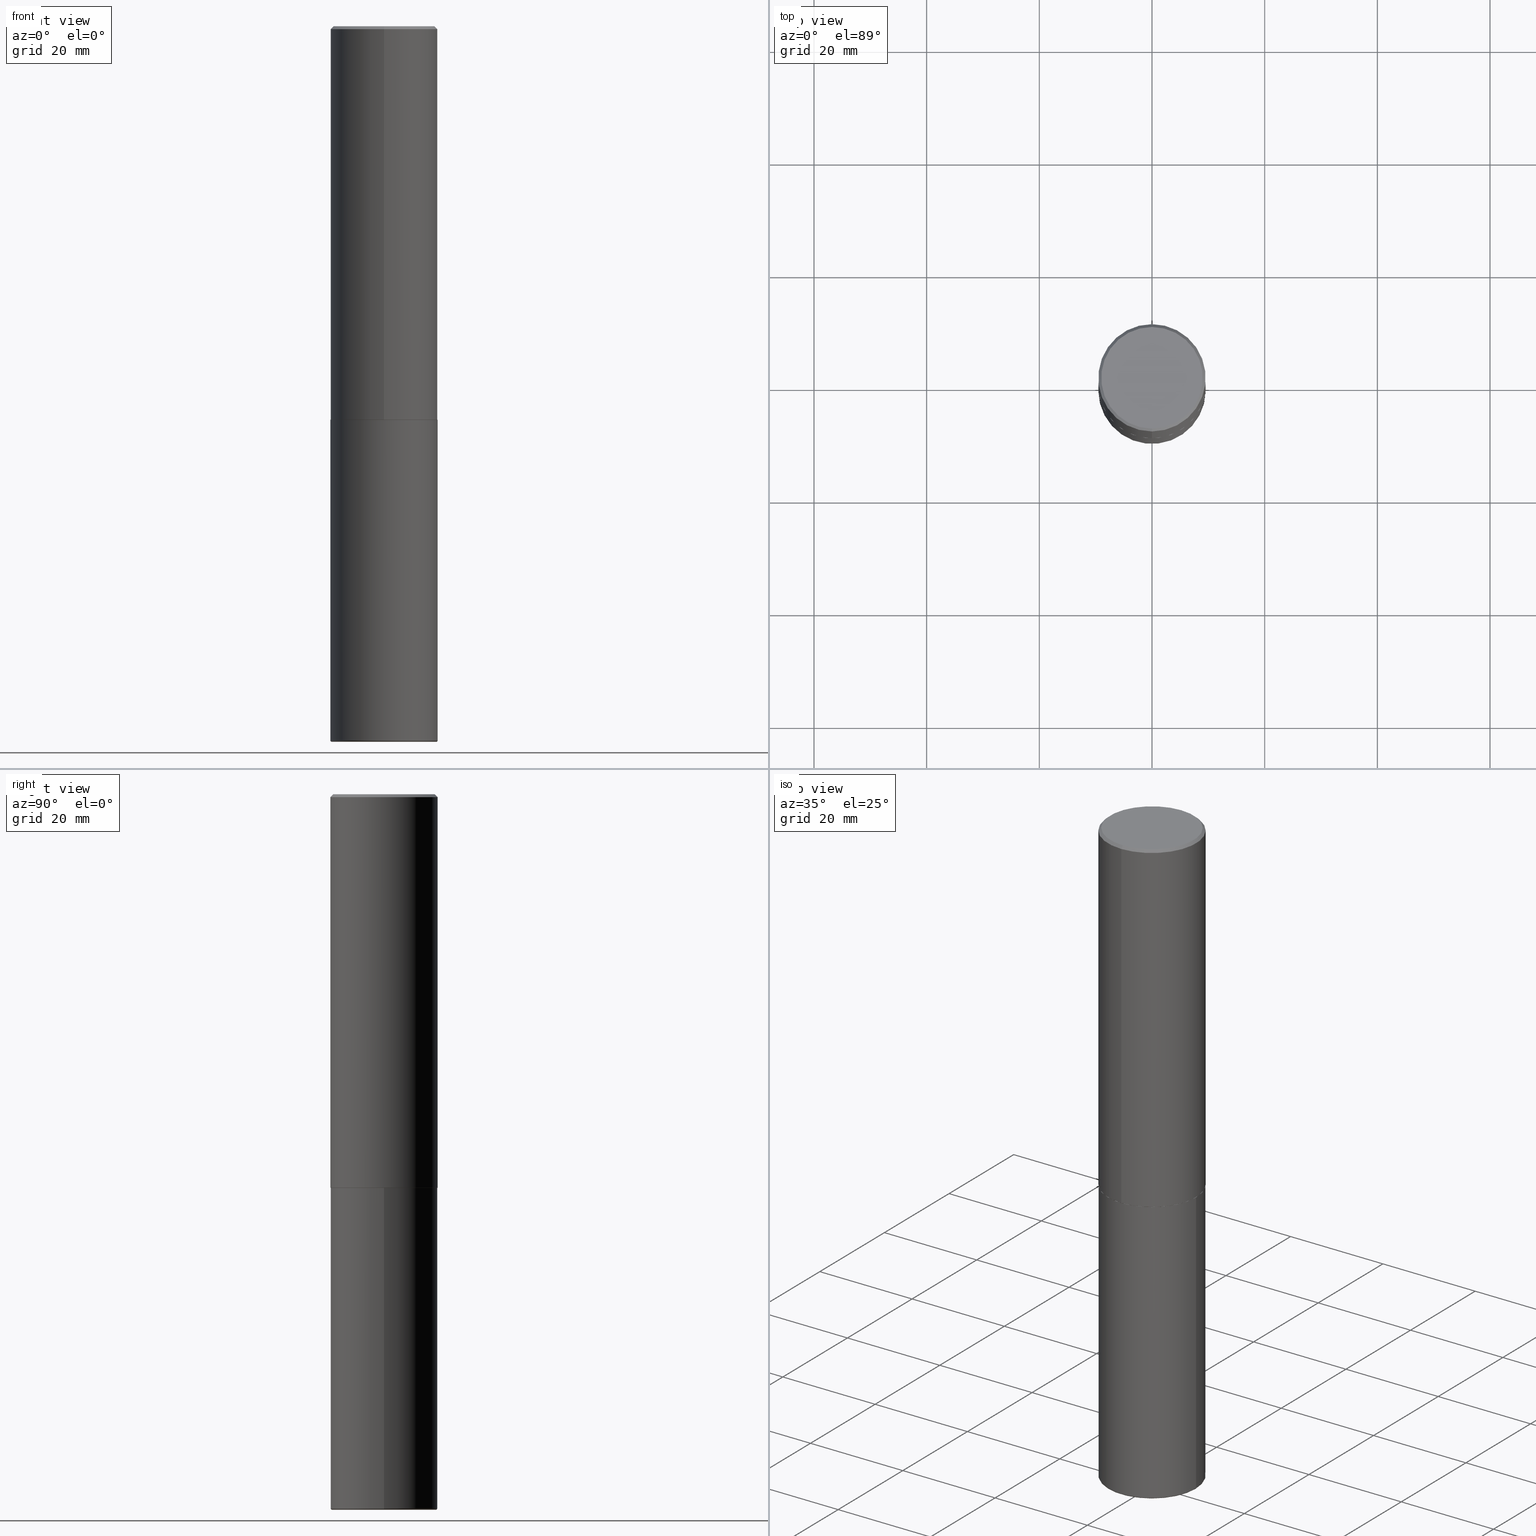
[diagram: canonical four-view strip — front | top / right | iso, engineering-drawing reading convention]
A machine part, canonical four-view strip (front | top / right | iso — engineering-drawing reading convention). The complete STEP part file that produces these views, byte-faithful:
ISO-10303-21;
HEADER;
FILE_DESCRIPTION (( 'STEP AP203' ),
    '1' );
FILE_NAME ('37637.STEP',
    '2024-03-02T06:30:19',
    ( '' ),
    ( '' ),
    'SwSTEP 2.0',
    'SolidWorks 2023',
    '' );
FILE_SCHEMA (( 'CONFIG_CONTROL_DESIGN' ));
ENDSEC;

DATA;
#1 = MECHANICAL_CONTEXT ( 'NONE', #52, 'mechanical' ) ;
#2 = CONICAL_SURFACE ( 'NONE', #416, 0.3750000000000000555, 0.7853981633974465026 ) ;
#3 = CONICAL_SURFACE ( 'NONE', #195, 0.3750000000000000555, 0.7853981633974465026 ) ;
#4 = APPROVAL ( #331, 'UNSPECIFIED' ) ;
#5 = ORIENTED_EDGE ( 'NONE', *, *, #392, .T. ) ;
#6 = UNCERTAINTY_MEASURE_WITH_UNIT (LENGTH_MEASURE( 1.000000000000000082E-05 ), #236, 'distance_accuracy_value', 'NONE');
#7 = ORIENTED_EDGE ( 'NONE', *, *, #225, .T. ) ;
#8 = LENGTH_MEASURE_WITH_UNIT ( LENGTH_MEASURE( 0.02539999999999999897 ), #66 );
#9 = CIRCLE ( 'NONE', #366, 0.3650000000000000466 ) ;
#10 = ORIENTED_EDGE ( 'NONE', *, *, #412, .F. ) ;
#11 = EDGE_LOOP ( 'NONE', ( #304, #19 ) ) ;
#12 = ORIENTED_EDGE ( 'NONE', *, *, #116, .T. ) ;
#13 = CC_DESIGN_SECURITY_CLASSIFICATION ( #130, ( #206 ) ) ;
#14 = AXIS2_PLACEMENT_3D ( 'NONE', #387, #48, #221 ) ;
#15 = AXIS2_PLACEMENT_3D ( 'NONE', #145, #24, #408 ) ;
#16 = VERTEX_POINT ( 'NONE', #306 ) ;
#17 = CARTESIAN_POINT ( 'NONE',  ( 2.657429831742841742E-15, 0.3739999999999903957, -2.750000000000000888 ) ) ;
#18 = CYLINDRICAL_SURFACE ( 'NONE', #189, 0.3750000000000000555 ) ;
#19 = ORIENTED_EDGE ( 'NONE', *, *, #295, .T. ) ;
#20 = DIRECTION ( 'NONE',  ( 1.000000000000000000, -6.982962677686271444E-15, 4.883557194083115143E-29 ) ) ;
#21 = DIRECTION ( 'NONE',  ( -2.446040391741596606E-29, 3.490662795793665557E-15, 1.000000000000000000 ) ) ;
#22 = CARTESIAN_POINT ( 'NONE',  ( -2.611628041454596160E-15, -0.3740000000000096581, -2.749999999999998668 ) ) ;
#23 = DIRECTION ( 'NONE',  ( 1.000000000000000000, -6.982962677686270655E-15, 0.000000000000000000 ) ) ;
#24 = DIRECTION ( 'NONE',  ( -2.446040391741596606E-29, 3.490662795793665557E-15, 1.000000000000000000 ) ) ;
#25 = CARTESIAN_POINT ( 'NONE',  ( 2.660982545421643429E-15, 0.3739999999999903957, -2.750000000000000888 ) ) ;
#26 = DIRECTION ( 'NONE',  ( 1.000000000000000000, 0.000000000000000000, 0.000000000000000000 ) ) ;
#27 = DIRECTION ( 'NONE',  ( -2.445468806185136597E-29, 3.491481338843145583E-15, 1.000000000000000000 ) ) ;
#28 = AXIS2_PLACEMENT_3D ( 'NONE', #90, #156, #292 ) ;
#29 = DIRECTION ( 'NONE',  ( -4.851104656540954809E-15, -0.7071067811865486830, -0.7071067811865463515 ) ) ;
#30 = APPROVAL_ROLE ( '' ) ;
#31 = CIRCLE ( 'NONE', #253, 0.3549999999999999822 ) ;
#32 = FACE_OUTER_BOUND ( 'NONE', #339, .T. ) ;
#33 = ORIENTED_EDGE ( 'NONE', *, *, #384, .T. ) ;
#34 = CARTESIAN_POINT ( 'NONE',  ( 1.220288934286383144E-28, -1.742249188082729666E-14, -4.990000000000000213 ) ) ;
#35 = ADVANCED_FACE ( 'NONE', ( #377 ), #386, .T. ) ;
#36 = CIRCLE ( 'NONE', #397, 0.3750000000000000555 ) ;
#37 = PRODUCT_DEFINITION ( 'UNKNOWN', '', #206, #332 ) ;
#38 = VERTEX_POINT ( 'NONE', #112 ) ;
#39 = ORIENTED_EDGE ( 'NONE', *, *, #170, .F. ) ;
#40 = ORIENTED_EDGE ( 'NONE', *, *, #186, .F. ) ;
#41 = CARTESIAN_POINT ( 'NONE',  ( 4.892080783483214581E-31, -6.981325591587361238E-17, -0.02000000000000008715 ) ) ;
#42 = VERTEX_POINT ( 'NONE', #73 ) ;
#43 = AXIS2_PLACEMENT_3D ( 'NONE', #371, #129, #249 ) ;
#44 = ORIENTED_EDGE ( 'NONE', *, *, #372, .F. ) ;
#45 = CARTESIAN_POINT ( 'NONE',  ( 1.220288934286383144E-28, -1.742249188082729666E-14, -4.990000000000000213 ) ) ;
#46 = LINE ( 'NONE', #313, #352 ) ;
#47 = CARTESIAN_POINT ( 'NONE',  ( -0.3750000000000000555, 2.664535259100376091E-15, -1.844600658845589598E-29 ) ) ;
#48 = DIRECTION ( 'NONE',  ( -2.445468806185136597E-29, 3.491481338843145583E-15, 1.000000000000000000 ) ) ;
#49 = DATE_TIME_ROLE ( 'creation_date' ) ;
#50 = PLANE ( 'NONE',  #418 ) ;
#51 = CYLINDRICAL_SURFACE ( 'NONE', #100, 0.3750000000000000555 ) ;
#52 = APPLICATION_CONTEXT ( 'configuration controlled 3d designs of mechanical parts and assemblies' ) ;
#53 = LINE ( 'NONE', #247, #402 ) ;
#54 = FACE_OUTER_BOUND ( 'NONE', #401, .T. ) ;
#55 = CARTESIAN_POINT ( 'NONE',  ( 0.000000000000000000, 0.000000000000000000, 0.000000000000000000 ) ) ;
#56 = EDGE_CURVE ( 'NONE', #337, #300, #308, .T. ) ;
#57 = APPLICATION_CONTEXT ( 'configuration controlled 3d designs of mechanical parts and assemblies' ) ;
#58 = VECTOR ( 'NONE', #169, 39.37007874015748143 ) ;
#59 = PERSON_AND_ORGANIZATION ( #120, #379 ) ;
#60 = EDGE_LOOP ( 'NONE', ( #363, #192 ) ) ;
#61 = EDGE_CURVE ( 'NONE', #174, #205, #46, .T. ) ;
#62 = ORIENTED_EDGE ( 'NONE', *, *, #395, .T. ) ;
#63 = PERSON_AND_ORGANIZATION_ROLE ( 'design_owner' ) ;
#64 = ORIENTED_EDGE ( 'NONE', *, *, #374, .F. ) ;
#65 = AXIS2_PLACEMENT_3D ( 'NONE', #343, #282, #411 ) ;
#66 =( LENGTH_UNIT ( ) NAMED_UNIT ( * ) SI_UNIT ( $, .METRE. ) );
#67 = CYLINDRICAL_SURFACE ( 'NONE', #80, 0.3750000000000002220 ) ;
#68 = CARTESIAN_POINT ( 'NONE',  ( 4.892080783483214581E-31, -6.981325591587361238E-17, -0.02000000000000008715 ) ) ;
#69 = AXIS2_PLACEMENT_3D ( 'NONE', #55, #115, #348 ) ;
#70 = ORIENTED_EDGE ( 'NONE', *, *, #258, .F. ) ;
#71 = CC_DESIGN_DATE_AND_TIME_ASSIGNMENT ( #341, #49, ( #37 ) ) ;
#72 = DIRECTION ( 'NONE',  ( 2.438088387897960049E-29, -3.491481338843145188E-15, -1.000000000000000000 ) ) ;
#73 = CARTESIAN_POINT ( 'NONE',  ( -2.611628041454596160E-15, -0.3740000000000096581, -2.749999999999998668 ) ) ;
#74 = APPROVAL_STATUS ( 'not_yet_approved' ) ;
#75 = FACE_OUTER_BOUND ( 'NONE', #60, .T. ) ;
#76 = ORIENTED_EDGE ( 'NONE', *, *, #116, .F. ) ;
#77 = CARTESIAN_POINT ( 'NONE',  ( 6.724165036897648492E-29, -9.595832025636787455E-15, -2.749000000000000110 ) ) ;
#78 = APPROVAL_PERSON_ORGANIZATION ( #181, #388, #144 ) ;
#79 = ADVANCED_FACE ( 'NONE', ( #367 ), #2, .T. ) ;
#80 = AXIS2_PLACEMENT_3D ( 'NONE', #390, #375, #140 ) ;
#81 = CARTESIAN_POINT ( 'NONE',  ( 2.478951750578624209E-15, 0.3549999999999999822, -1.215853765202481601E-15 ) ) ;
#82 = CALENDAR_DATE ( 2024, 2, 3 ) ;
#83 = DIRECTION ( 'NONE',  ( -2.446040391741596606E-29, 3.490662795793665557E-15, 1.000000000000000000 ) ) ;
#84 = DIRECTION ( 'NONE',  ( -2.446040391741596606E-29, 3.490662795793665557E-15, 1.000000000000000000 ) ) ;
#85 = DATE_AND_TIME ( #278, #323 ) ;
#86 = EDGE_CURVE ( 'NONE', #198, #337, #359, .T. ) ;
#87 = CARTESIAN_POINT ( 'NONE',  ( 1.220288934286383144E-28, -1.742249188082729666E-14, -4.990000000000000213 ) ) ;
#88 = CARTESIAN_POINT ( 'NONE',  ( 6.726611077289389265E-29, -9.599322688432580971E-15, -2.750000000000000000 ) ) ;
#89 = FACE_OUTER_BOUND ( 'NONE', #263, .T. ) ;
#90 = CARTESIAN_POINT ( 'NONE',  ( 6.726611077289389265E-29, -9.599322688432580971E-15, -2.750000000000000000 ) ) ;
#91 = EDGE_CURVE ( 'NONE', #38, #370, #53, .T. ) ;
#92 = SECURITY_CLASSIFICATION_LEVEL ( 'unclassified' ) ;
#93 = AXIS2_PLACEMENT_3D ( 'NONE', #293, #290, #325 ) ;
#94 = AXIS2_PLACEMENT_3D ( 'NONE', #45, #336, #20 ) ;
#95 = DIRECTION ( 'NONE',  ( -2.445468806185136597E-29, 3.491481338843145583E-15, 1.000000000000000000 ) ) ;
#96 = ORIENTED_EDGE ( 'NONE', *, *, #295, .F. ) ;
#97 = PERSON_AND_ORGANIZATION ( #120, #379 ) ;
#98 = DIRECTION ( 'NONE',  ( -6.982962677686266711E-15, -1.000000000000000000, 2.921762560068730595E-15 ) ) ;
#99 = ORIENTED_EDGE ( 'NONE', *, *, #103, .T. ) ;
#100 = AXIS2_PLACEMENT_3D ( 'NONE', #121, #154, #180 ) ;
#101 = LOCAL_TIME ( 1, 30, 19.00000000000000000, #217 ) ;
#102 = EDGE_LOOP ( 'NONE', ( #131, #167, #39, #335 ) ) ;
#103 = EDGE_CURVE ( 'NONE', #16, #205, #256, .T. ) ;
#104 = DIRECTION ( 'NONE',  ( 2.446040391741596606E-29, -3.490662795793665557E-15, -1.000000000000000000 ) ) ;
#105 = AXIS2_PLACEMENT_3D ( 'NONE', #328, #319, #98 ) ;
#106 = ORIENTED_EDGE ( 'NONE', *, *, #86, .F. ) ;
#107 = LINE ( 'NONE', #47, #353 ) ;
#108 = EDGE_LOOP ( 'NONE', ( #96, #99, #33, #76 ) ) ;
#109 = CALENDAR_DATE ( 2024, 2, 3 ) ;
#110 = DIRECTION ( 'NONE',  ( -6.982962677686265922E-15, -1.000000000000000000, 3.490662795793665557E-15 ) ) ;
#111 = CC_DESIGN_PERSON_AND_ORGANIZATION_ASSIGNMENT ( #97, #63, ( #347 ) ) ;
#112 = CARTESIAN_POINT ( 'NONE',  ( 2.664535259100411196E-15, 0.3749999999999907296, -2.749000000000000998 ) ) ;
#113 = AXIS2_PLACEMENT_3D ( 'NONE', #209, #137, #344 ) ;
#114 = AXIS2_PLACEMENT_3D ( 'NONE', #406, #83, #204 ) ;
#115 = DIRECTION ( 'NONE',  ( -2.446040391741596606E-29, 3.490662795793665557E-15, 1.000000000000000000 ) ) ;
#116 = EDGE_CURVE ( 'NONE', #267, #370, #351, .T. ) ;
#117 = FACE_OUTER_BOUND ( 'NONE', #281, .T. ) ;
#118 = DATE_AND_TIME ( #82, #101 ) ;
#119 = CARTESIAN_POINT ( 'NONE',  ( 6.726611077289389265E-29, -9.599322688432580971E-15, -2.750000000000000000 ) ) ;
#120 = PERSON ( 'UNSPECIFIED', 'UNSPECIFIED', 'UNSPECIFIED', ('UNSPECIFIED'), ('UNSPECIFIED'), ('UNSPECIFIED') ) ;
#121 = CARTESIAN_POINT ( 'NONE',  ( 0.000000000000000000, 0.000000000000000000, 0.000000000000000000 ) ) ;
#122 = APPROVAL_DATE_TIME ( #118, #365 ) ;
#123 = DIRECTION ( 'NONE',  ( -6.982962677686265922E-15, -1.000000000000000000, 2.913971193241877611E-15 ) ) ;
#124 = CIRCLE ( 'NONE', #271, 0.3750000000000000555 ) ;
#125 = DIRECTION ( 'NONE',  ( 6.982962677686265922E-15, 1.000000000000000000, -3.490662795793665557E-15 ) ) ;
#126 = DIRECTION ( 'NONE',  ( 1.000000000000000000, -6.982962677686265922E-15, 4.876176775795935793E-29 ) ) ;
#127 = CARTESIAN_POINT ( 'NONE',  ( 2.548781377355487113E-15, 0.3549999999999999822, -1.192522237898212341E-15 ) ) ;
#128 = CC_DESIGN_DATE_AND_TIME_ASSIGNMENT ( #224, #132, ( #130 ) ) ;
#129 = DIRECTION ( 'NONE',  ( -2.446040391741596606E-29, 3.490662795793665557E-15, 1.000000000000000000 ) ) ;
#130 = SECURITY_CLASSIFICATION ( '', '', #92 ) ;
#131 = ORIENTED_EDGE ( 'NONE', *, *, #258, .T. ) ;
#132 = DATE_TIME_ROLE ( 'classification_date' ) ;
#133 = MANIFOLD_SOLID_BREP ( 'Body-Move/Copy2[2]', #183 ) ;
#134 = CC_DESIGN_APPROVAL ( #388, ( #206 ) ) ;
#135 = ORIENTED_EDGE ( 'NONE', *, *, #381, .T. ) ;
#136 = ADVANCED_FACE ( 'NONE', ( #89 ), #51, .T. ) ;
#137 = DIRECTION ( 'NONE',  ( 7.105427357601001859E-15, 1.000000000000000000, -3.491481338843145583E-15 ) ) ;
#138 = DIRECTION ( 'NONE',  ( 1.000000000000000000, -6.982962677686271444E-15, 4.883557194083115143E-29 ) ) ;
#139 = AXIS2_PLACEMENT_3D ( 'NONE', #77, #350, #151 ) ;
#140 = DIRECTION ( 'NONE',  ( -6.982962677686266711E-15, -1.000000000000000000, 3.490662795793665951E-15 ) ) ;
#141 = VERTEX_POINT ( 'NONE', #187 ) ;
#142 = FACE_OUTER_BOUND ( 'NONE', #241, .T. ) ;
#143 = PRODUCT_DEFINITION_SHAPE ( 'NONE', 'NONE',  #37 ) ;
#144 = APPROVAL_ROLE ( '' ) ;
#145 = CARTESIAN_POINT ( 'NONE',  ( -1.141397163745304909E-45, 1.628849886601155835E-31, 4.666305460853910467E-17 ) ) ;
#146 = ORIENTED_EDGE ( 'NONE', *, *, #251, .F. ) ;
#147 = CARTESIAN_POINT ( 'NONE',  ( -1.141397163745304909E-45, 1.628849886601155835E-31, 4.666305460853910467E-17 ) ) ;
#148 = LOCAL_TIME ( 1, 30, 19.00000000000000000, #321 ) ;
#149 = CARTESIAN_POINT ( 'NONE',  ( -2.572686749164323547E-15, -0.3750000000000001110, -0.01999999999999877570 ) ) ;
#150 = COORDINATED_UNIVERSAL_TIME_OFFSET ( 5, 0, .BEHIND. ) ;
#151 = DIRECTION ( 'NONE',  ( -6.982962677686265922E-15, -1.000000000000000000, 2.913971193241877611E-15 ) ) ;
#152 = EDGE_CURVE ( 'NONE', #370, #205, #283, .T. ) ;
#153 = CYLINDRICAL_SURFACE ( 'NONE', #69, 0.3750000000000002220 ) ;
#154 = DIRECTION ( 'NONE',  ( -2.445468806185136597E-29, 3.491481338843145583E-15, 1.000000000000000000 ) ) ;
#155 = APPROVAL_PERSON_ORGANIZATION ( #330, #365, #318 ) ;
#156 = DIRECTION ( 'NONE',  ( -2.446040391741596606E-29, 3.490662795793665557E-15, 1.000000000000000000 ) ) ;
#157 = CALENDAR_DATE ( 2024, 2, 3 ) ;
#158 = ORIENTED_EDGE ( 'NONE', *, *, #412, .T. ) ;
#159 = APPLICATION_PROTOCOL_DEFINITION ( 'international standard', 'config_control_design', 1994, #52 ) ;
#160 = DIRECTION ( 'NONE',  ( 1.000000000000000000, -6.982962677686261189E-15, 0.000000000000000000 ) ) ;
#161 = ADVANCED_FACE ( 'NONE', ( #117 ), #382, .T. ) ;
#162 = VECTOR ( 'NONE', #316, 39.37007874015748143 ) ;
#163 = CC_DESIGN_PERSON_AND_ORGANIZATION_ASSIGNMENT ( #191, #329, ( #130 ) ) ;
#164 = ORIENTED_EDGE ( 'NONE', *, *, #103, .F. ) ;
#165 = APPROVAL_PERSON_ORGANIZATION ( #261, #4, #30 ) ;
#166 = CIRCLE ( 'NONE', #15, 0.3549999999999999822 ) ;
#167 = ORIENTED_EDGE ( 'NONE', *, *, #372, .T. ) ;
#168 = EDGE_LOOP ( 'NONE', ( #360, #274, #70, #409 ) ) ;
#169 = DIRECTION ( 'NONE',  ( -4.937700262165896205E-15, -0.7071067811867381980, 0.7071067811863568364 ) ) ;
#170 = EDGE_CURVE ( 'NONE', #201, #171, #396, .T. ) ;
#171 = VERTEX_POINT ( 'NONE', #248 ) ;
#172 = DIRECTION ( 'NONE',  ( -2.446040391741596606E-29, 3.490662795793665557E-15, 1.000000000000000000 ) ) ;
#173 = AXIS2_PLACEMENT_3D ( 'NONE', #34, #294, #160 ) ;
#174 = VERTEX_POINT ( 'NONE', #385 ) ;
#175 = APPROVAL_STATUS ( 'not_yet_approved' ) ;
#176 = CARTESIAN_POINT ( 'NONE',  ( 2.618611004132350411E-15, 0.3749999999999999445, -0.02000000000000139513 ) ) ;
#177 = ORIENTED_EDGE ( 'NONE', *, *, #303, .T. ) ;
#178 = PERSON_AND_ORGANIZATION_ROLE ( 'creator' ) ;
#179 = CARTESIAN_POINT ( 'NONE',  ( -0.3750000000000003886, -1.475795662172691781E-14, -4.990000000000000213 ) ) ;
#180 = DIRECTION ( 'NONE',  ( 1.000000000000000000, -6.982962677686265922E-15, 4.876176775795935793E-29 ) ) ;
#181 = PERSON_AND_ORGANIZATION ( #120, #379 ) ;
#182 = ADVANCED_FACE ( 'NONE', ( #415 ), #317, .F. ) ;
#183 = CLOSED_SHELL ( 'NONE', ( #233, #199, #79, #320, #208, #417, #280, #182 ) ) ;
#184 = AXIS2_PLACEMENT_3D ( 'NONE', #119, #380, #346 ) ;
#185 = DIRECTION ( 'NONE',  ( -2.446040391741596606E-29, 3.490662795793665557E-15, 1.000000000000000000 ) ) ;
#186 = EDGE_CURVE ( 'NONE', #300, #141, #124, .T. ) ;
#187 = CARTESIAN_POINT ( 'NONE',  ( 0.3750000000000003886, -2.004110288495964667E-14, -4.990000000000000213 ) ) ;
#188 = DIRECTION ( 'NONE',  ( -2.445468806185136597E-29, 3.491481338843145583E-15, 1.000000000000000000 ) ) ;
#189 = AXIS2_PLACEMENT_3D ( 'NONE', #260, #95, #126 ) ;
#190 =( NAMED_UNIT ( * ) SI_UNIT ( $, .STERADIAN. ) SOLID_ANGLE_UNIT ( ) );
#191 = PERSON_AND_ORGANIZATION ( #120, #379 ) ;
#192 = ORIENTED_EDGE ( 'NONE', *, *, #276, .T. ) ;
#193 = APPLICATION_PROTOCOL_DEFINITION ( 'international standard', 'config_control_design', 1994, #57 ) ;
#194 = AXIS2_PLACEMENT_3D ( 'NONE', #214, #413, #315 ) ;
#195 = AXIS2_PLACEMENT_3D ( 'NONE', #41, #279, #404 ) ;
#196 = VERTEX_POINT ( 'NONE', #25 ) ;
#197 = DIRECTION ( 'NONE',  ( -2.446040391741596045E-29, 3.490662795793665557E-15, 1.000000000000000000 ) ) ;
#198 = VERTEX_POINT ( 'NONE', #322 ) ;
#199 = ADVANCED_FACE ( 'NONE', ( #358 ), #153, .T. ) ;
#200 = ORIENTED_EDGE ( 'NONE', *, *, #381, .F. ) ;
#201 = VERTEX_POINT ( 'NONE', #250 ) ;
#202 = CARTESIAN_POINT ( 'NONE',  ( 0.3750000000000000555, -2.618611004132350016E-15, 1.828566290923476203E-29 ) ) ;
#203 = ORIENTED_EDGE ( 'NONE', *, *, #384, .F. ) ;
#204 = DIRECTION ( 'NONE',  ( -6.982962677686265922E-15, -1.000000000000000000, 3.494488891895536035E-15 ) ) ;
#205 = VERTEX_POINT ( 'NONE', #149 ) ;
#206 = PRODUCT_DEFINITION_FORMATION_WITH_SPECIFIED_SOURCE ( 'ANY', '', #347, .NOT_KNOWN. ) ;
#207 = AXIS2_PLACEMENT_3D ( 'NONE', #88, #197, #213 ) ;
#208 = ADVANCED_FACE ( 'NONE', ( #285 ), #67, .T. ) ;
#209 = CARTESIAN_POINT ( 'NONE',  ( -0.3650000000000000466, -1.482901089530292947E-14, -4.990000000000000213 ) ) ;
#210 = DIRECTION ( 'NONE',  ( -1.000000000000000000, 6.982962677686265922E-15, -4.876176775795935793E-29 ) ) ;
#211 = DIRECTION ( 'NONE',  ( 2.446040391741596045E-29, -3.490662795793665557E-15, -1.000000000000000000 ) ) ;
#212 = ADVANCED_FACE ( 'NONE', ( #273 ), #18, .T. ) ;
#213 = DIRECTION ( 'NONE',  ( -6.982962677686265922E-15, -1.000000000000000000, 3.490662795793665557E-15 ) ) ;
#214 = CARTESIAN_POINT ( 'NONE',  ( 4.892080783483214581E-31, -6.981325591587361238E-17, -0.02000000000000008715 ) ) ;
#215 = VECTOR ( 'NONE', #389, 39.37007874015748143 ) ;
#216 = CIRCLE ( 'NONE', #28, 0.3739999999999999991 ) ;
#217 = COORDINATED_UNIVERSAL_TIME_OFFSET ( 5, 0, .BEHIND. ) ;
#218 = DIMENSIONAL_EXPONENTS ( 1.000000000000000000, 0.000000000000000000, 0.000000000000000000, 0.000000000000000000, 0.000000000000000000, 0.000000000000000000, 0.000000000000000000 ) ;
#219 = DIRECTION ( 'NONE',  ( -2.445468806185136597E-29, 3.491481338843145583E-15, 1.000000000000000000 ) ) ;
#220 = CALENDAR_DATE ( 2024, 2, 3 ) ;
#221 = DIRECTION ( 'NONE',  ( 1.000000000000000000, -6.982962677686266711E-15, 0.000000000000000000 ) ) ;
#222 = DIRECTION ( 'NONE',  ( 1.000000000000000000, -6.982962677686270655E-15, 0.000000000000000000 ) ) ;
#223 = TOROIDAL_SURFACE ( 'NONE', #94, 0.3650000000000000466, 0.01000000000000061083 ) ;
#224 = DATE_AND_TIME ( #157, #291 ) ;
#225 = EDGE_CURVE ( 'NONE', #337, #198, #9, .T. ) ;
#226 = CARTESIAN_POINT ( 'NONE',  ( 6.725039217009124520E-29, -9.601573681818649859E-15, -2.750000000000000000 ) ) ;
#227 = ORIENTED_EDGE ( 'NONE', *, *, #152, .F. ) ;
#228 = CIRCLE ( 'NONE', #139, 0.3750000000000003886 ) ;
#229 = ORIENTED_EDGE ( 'NONE', *, *, #303, .F. ) ;
#230 = CC_DESIGN_PERSON_AND_ORGANIZATION_ASSIGNMENT ( #345, #178, ( #206 ) ) ;
#231 = DIRECTION ( 'NONE',  ( -2.445468806185136597E-29, 3.491481338843145583E-15, 1.000000000000000000 ) ) ;
#232 = ORIENTED_EDGE ( 'NONE', *, *, #276, .F. ) ;
#233 = ADVANCED_FACE ( 'NONE', ( #32 ), #369, .T. ) ;
#234 = VECTOR ( 'NONE', #338, 39.37007874015748143 ) ;
#235 = ORIENTED_EDGE ( 'NONE', *, *, #61, .F. ) ;
#236 =( CONVERSION_BASED_UNIT ( 'INCH', #8 ) LENGTH_UNIT ( ) NAMED_UNIT ( #218 ) );
#237 = EDGE_CURVE ( 'NONE', #196, #42, #216, .T. ) ;
#238 = LINE ( 'NONE', #17, #162 ) ;
#239 = ORIENTED_EDGE ( 'NONE', *, *, #357, .F. ) ;
#240 = FACE_OUTER_BOUND ( 'NONE', #301, .T. ) ;
#241 = EDGE_LOOP ( 'NONE', ( #376, #7, #5, #40 ) ) ;
#242 = CARTESIAN_POINT ( 'NONE',  ( -0.3650000000000000466, -1.481094116520914498E-14, -5.000000000000000888 ) ) ;
#243 = CLOSED_SHELL ( 'NONE', ( #212, #35, #311, #136, #399, #161 ) ) ;
#244 = CIRCLE ( 'NONE', #173, 0.3750000000000000555 ) ;
#245 = PRODUCT_RELATED_PRODUCT_CATEGORY ( 'detail', '', ( #347 ) ) ;
#246 = APPROVAL_DATE_TIME ( #356, #4 ) ;
#247 = CARTESIAN_POINT ( 'NONE',  ( 2.664535259100376880E-15, 0.3750000000000002220, -1.308998548422625521E-15 ) ) ;
#248 = CARTESIAN_POINT ( 'NONE',  ( -0.3750000000000000555, -1.084749752222259835E-14, -2.750000000000000000 ) ) ;
#249 = DIRECTION ( 'NONE',  ( -6.982962677686266711E-15, -1.000000000000000000, 2.921762560068730595E-15 ) ) ;
#250 = CARTESIAN_POINT ( 'NONE',  ( 0.3750000000000000555, -1.222018468595100145E-14, -2.750000000000000000 ) ) ;
#251 = EDGE_CURVE ( 'NONE', #174, #38, #264, .T. ) ;
#252 = PLANE ( 'NONE',  #207 ) ;
#253 = AXIS2_PLACEMENT_3D ( 'NONE', #147, #172, #110 ) ;
#254 = CARTESIAN_POINT ( 'NONE',  ( 2.618611004132350411E-15, 0.3749999999999999445, -0.02000000000000139513 ) ) ;
#255 = COORDINATED_UNIVERSAL_TIME_OFFSET ( 5, 0, .BEHIND. ) ;
#256 = LINE ( 'NONE', #383, #410 ) ;
#257 = AXIS2_PLACEMENT_3D ( 'NONE', #277, #231, #138 ) ;
#258 = EDGE_CURVE ( 'NONE', #141, #300, #244, .T. ) ;
#259 = EDGE_LOOP ( 'NONE', ( #333, #327, #203, #235 ) ) ;
#260 = CARTESIAN_POINT ( 'NONE',  ( 0.000000000000000000, 0.000000000000000000, 0.000000000000000000 ) ) ;
#261 = PERSON_AND_ORGANIZATION ( #120, #379 ) ;
#262 =( NAMED_UNIT ( * ) PLANE_ANGLE_UNIT ( ) SI_UNIT ( $, .RADIAN. ) );
#263 = EDGE_LOOP ( 'NONE', ( #44, #398, #62, #232 ) ) ;
#264 = CIRCLE ( 'NONE', #298, 0.3750000000000003886 ) ;
#265 = AXIS2_PLACEMENT_3D ( 'NONE', #403, #287, #23 ) ;
#266 = CIRCLE ( 'NONE', #184, 0.3739999999999999991 ) ;
#267 = VERTEX_POINT ( 'NONE', #127 ) ;
#268 = ORIENTED_EDGE ( 'NONE', *, *, #374, .T. ) ;
#269 = MANIFOLD_SOLID_BREP ( 'Body-Move/Copy2[1]', #243 ) ;
#270 = DIRECTION ( 'NONE',  ( 6.982962677686265922E-15, 1.000000000000000000, -3.494488891895536035E-15 ) ) ;
#271 = AXIS2_PLACEMENT_3D ( 'NONE', #87, #219, #355 ) ;
#272 = CARTESIAN_POINT ( 'NONE',  ( 6.725039217009124520E-29, -9.601573681818649859E-15, -2.750000000000000000 ) ) ;
#273 = FACE_OUTER_BOUND ( 'NONE', #102, .T. ) ;
#274 = ORIENTED_EDGE ( 'NONE', *, *, #56, .T. ) ;
#275 = LINE ( 'NONE', #22, #58 ) ;
#276 = EDGE_CURVE ( 'NONE', #171, #201, #36, .T. ) ;
#277 = CARTESIAN_POINT ( 'NONE',  ( 1.220288934286383144E-28, -1.742249188082729666E-14, -4.990000000000000213 ) ) ;
#278 = CALENDAR_DATE ( 2024, 2, 3 ) ;
#279 = DIRECTION ( 'NONE',  ( 2.446040391741596606E-29, -3.490662795793665557E-15, -1.000000000000000000 ) ) ;
#280 = ADVANCED_FACE ( 'NONE', ( #54 ), #252, .F. ) ;
#281 = EDGE_LOOP ( 'NONE', ( #106, #373 ) ) ;
#282 = DIRECTION ( 'NONE',  ( -6.982962677686266711E-15, -1.000000000000000000, 3.491481338843145583E-15 ) ) ;
#283 = CIRCLE ( 'NONE', #194, 0.3750000000000000555 ) ;
#284 = CIRCLE ( 'NONE', #114, 0.3750000000000000555 ) ;
#285 = FACE_OUTER_BOUND ( 'NONE', #393, .T. ) ;
#286 = FACE_OUTER_BOUND ( 'NONE', #394, .T. ) ;
#287 = DIRECTION ( 'NONE',  ( -2.445468806185136597E-29, 3.491481338843145583E-15, 1.000000000000000000 ) ) ;
#288 = CARTESIAN_POINT ( 'NONE',  ( 0.000000000000000000, 0.000000000000000000, 0.000000000000000000 ) ) ;
#289 = CARTESIAN_POINT ( 'NONE',  ( 6.724165036897648492E-29, -9.595832025636787455E-15, -2.749000000000000110 ) ) ;
#290 = DIRECTION ( 'NONE',  ( 2.438088387897960049E-29, -3.491481338843145188E-15, -1.000000000000000000 ) ) ;
#291 = LOCAL_TIME ( 1, 30, 19.00000000000000000, #299 ) ;
#292 = DIRECTION ( 'NONE',  ( -6.982962677686266711E-15, -1.000000000000000000, 2.921762560068730595E-15 ) ) ;
#293 = CARTESIAN_POINT ( 'NONE',  ( 1.774526178394363037E-29, -3.242643679648566706E-14, -5.000000000000000000 ) ) ;
#294 = DIRECTION ( 'NONE',  ( -2.445468806185136597E-29, 3.491481338843145583E-15, 1.000000000000000000 ) ) ;
#295 = EDGE_CURVE ( 'NONE', #16, #267, #31, .T. ) ;
#296 = ADVANCED_BREP_SHAPE_REPRESENTATION ( '37637', ( #269, #133, #302 ), #309 ) ;
#297 = LOCAL_TIME ( 1, 30, 19.00000000000000000, #255 ) ;
#298 = AXIS2_PLACEMENT_3D ( 'NONE', #289, #185, #123 ) ;
#299 = COORDINATED_UNIVERSAL_TIME_OFFSET ( 5, 0, .BEHIND. ) ;
#300 = VERTEX_POINT ( 'NONE', #179 ) ;
#301 = EDGE_LOOP ( 'NONE', ( #164, #239, #12, #407 ) ) ;
#302 = AXIS2_PLACEMENT_3D ( 'NONE', #288, #414, #26 ) ;
#303 = EDGE_CURVE ( 'NONE', #42, #196, #266, .T. ) ;
#304 = ORIENTED_EDGE ( 'NONE', *, *, #357, .T. ) ;
#305 = CC_DESIGN_PERSON_AND_ORGANIZATION_ASSIGNMENT ( #59, #362, ( #206 ) ) ;
#306 = CARTESIAN_POINT ( 'NONE',  ( -2.504081769186608216E-15, -0.3549999999999999822, 1.285848347115290366E-15 ) ) ;
#307 = ORIENTED_EDGE ( 'NONE', *, *, #61, .T. ) ;
#308 = CIRCLE ( 'NONE', #113, 0.01000000000000057614 ) ;
#309 =( GEOMETRIC_REPRESENTATION_CONTEXT ( 3 ) GLOBAL_UNCERTAINTY_ASSIGNED_CONTEXT ( ( #6 ) ) GLOBAL_UNIT_ASSIGNED_CONTEXT ( ( #236, #262, #190 ) ) REPRESENTATION_CONTEXT ( 'NONE', 'WORKASPACE' ) );
#310 = ORIENTED_EDGE ( 'NONE', *, *, #237, .T. ) ;
#311 = ADVANCED_FACE ( 'NONE', ( #75 ), #50, .F. ) ;
#312 = LINE ( 'NONE', #202, #234 ) ;
#313 = CARTESIAN_POINT ( 'NONE',  ( -2.618611004132351594E-15, -0.3750000000000002220, 1.308998548422625521E-15 ) ) ;
#314 = DIRECTION ( 'NONE',  ( -2.445468806185136877E-29, 3.491481338843145188E-15, 1.000000000000000000 ) ) ;
#315 = DIRECTION ( 'NONE',  ( -6.982962677686265922E-15, -1.000000000000000000, 3.494488891895536035E-15 ) ) ;
#316 = DIRECTION ( 'NONE',  ( 5.024295867789434219E-15, 0.7071067811867430830, 0.7071067811863519514 ) ) ;
#317 = PLANE ( 'NONE',  #340 ) ;
#318 = APPROVAL_ROLE ( '' ) ;
#319 = DIRECTION ( 'NONE',  ( -2.446040391741596606E-29, 3.490662795793665557E-15, 1.000000000000000000 ) ) ;
#320 = ADVANCED_FACE ( 'NONE', ( #240 ), #3, .T. ) ;
#321 = COORDINATED_UNIVERSAL_TIME_OFFSET ( 5, 0, .BEHIND. ) ;
#322 = CARTESIAN_POINT ( 'NONE',  ( 0.3650000000000000466, -2.000618807157122291E-14, -5.000000000000000888 ) ) ;
#323 = LOCAL_TIME ( 1, 30, 19.00000000000000000, #150 ) ;
#324 = CIRCLE ( 'NONE', #65, 0.01000000000000057614 ) ;
#325 = DIRECTION ( 'NONE',  ( -1.000000000000000000, 6.982962677686265922E-15, -4.876176775795935793E-29 ) ) ;
#326 = CARTESIAN_POINT ( 'NONE',  ( 1.222734403092568523E-28, -1.745740669421573304E-14, -5.000000000000000888 ) ) ;
#327 = ORIENTED_EDGE ( 'NONE', *, *, #91, .T. ) ;
#328 = CARTESIAN_POINT ( 'NONE',  ( 6.726611077289389265E-29, -9.599322688432580971E-15, -2.750000000000000000 ) ) ;
#329 = PERSON_AND_ORGANIZATION_ROLE ( 'classification_officer' ) ;
#330 = PERSON_AND_ORGANIZATION ( #120, #379 ) ;
#331 = APPROVAL_STATUS ( 'not_yet_approved' ) ;
#332 = DESIGN_CONTEXT ( 'detailed design', #57, 'design' ) ;
#333 = ORIENTED_EDGE ( 'NONE', *, *, #251, .T. ) ;
#334 = CC_DESIGN_PERSON_AND_ORGANIZATION_ASSIGNMENT ( #354, #349, ( #37 ) ) ;
#335 = ORIENTED_EDGE ( 'NONE', *, *, #395, .F. ) ;
#336 = DIRECTION ( 'NONE',  ( -2.445468806185136597E-29, 3.491481338843145583E-15, 1.000000000000000000 ) ) ;
#337 = VERTEX_POINT ( 'NONE', #242 ) ;
#338 = DIRECTION ( 'NONE',  ( -2.445468806185136877E-29, 3.491481338843145188E-15, 1.000000000000000000 ) ) ;
#339 = EDGE_LOOP ( 'NONE', ( #177, #135, #146, #64 ) ) ;
#340 = AXIS2_PLACEMENT_3D ( 'NONE', #81, #211, #125 ) ;
#341 = DATE_AND_TIME ( #109, #148 ) ;
#342 = CC_DESIGN_APPROVAL ( #365, ( #37 ) ) ;
#343 = CARTESIAN_POINT ( 'NONE',  ( 0.3650000000000000466, -1.997127325818278338E-14, -4.990000000000000213 ) ) ;
#344 = DIRECTION ( 'NONE',  ( -1.000000000000000000, 7.105427357601099677E-15, 0.000000000000000000 ) ) ;
#345 = PERSON_AND_ORGANIZATION ( #120, #379 ) ;
#346 = DIRECTION ( 'NONE',  ( -6.982962677686266711E-15, -1.000000000000000000, 2.921762560068730595E-15 ) ) ;
#347 = PRODUCT ( '37637', '37637', '', ( #1 ) ) ;
#348 = DIRECTION ( 'NONE',  ( -6.982962677686266711E-15, -1.000000000000000000, 3.490662795793665951E-15 ) ) ;
#349 = PERSON_AND_ORGANIZATION_ROLE ( 'creator' ) ;
#350 = DIRECTION ( 'NONE',  ( -2.446040391741596606E-29, 3.490662795793665557E-15, 1.000000000000000000 ) ) ;
#351 = LINE ( 'NONE', #254, #215 ) ;
#352 = VECTOR ( 'NONE', #21, 39.37007874015748143 ) ;
#353 = VECTOR ( 'NONE', #314, 39.37007874015748143 ) ;
#354 = PERSON_AND_ORGANIZATION ( #120, #379 ) ;
#355 = DIRECTION ( 'NONE',  ( 1.000000000000000000, -6.982962677686261189E-15, 0.000000000000000000 ) ) ;
#356 = DATE_AND_TIME ( #220, #297 ) ;
#357 = EDGE_CURVE ( 'NONE', #267, #16, #166, .T. ) ;
#358 = FACE_OUTER_BOUND ( 'NONE', #259, .T. ) ;
#359 = CIRCLE ( 'NONE', #265, 0.3650000000000000466 ) ;
#360 = ORIENTED_EDGE ( 'NONE', *, *, #86, .T. ) ;
#361 = SHAPE_DEFINITION_REPRESENTATION ( #143, #296 ) ;
#362 = PERSON_AND_ORGANIZATION_ROLE ( 'design_supplier' ) ;
#363 = ORIENTED_EDGE ( 'NONE', *, *, #170, .T. ) ;
#364 = DIRECTION ( 'NONE',  ( 1.000000000000000000, -6.982962677686266711E-15, 0.000000000000000000 ) ) ;
#365 = APPROVAL ( #74, 'UNSPECIFIED' ) ;
#366 = AXIS2_PLACEMENT_3D ( 'NONE', #326, #188, #222 ) ;
#367 = FACE_OUTER_BOUND ( 'NONE', #108, .T. ) ;
#368 = CC_DESIGN_APPROVAL ( #4, ( #130 ) ) ;
#369 = CONICAL_SURFACE ( 'NONE', #105, 0.3739999999999999991, 0.7853981633977213939 ) ;
#370 = VERTEX_POINT ( 'NONE', #176 ) ;
#371 = CARTESIAN_POINT ( 'NONE',  ( 6.726611077289389265E-29, -9.599322688432580971E-15, -2.750000000000000000 ) ) ;
#372 = EDGE_CURVE ( 'NONE', #300, #171, #107, .T. ) ;
#373 = ORIENTED_EDGE ( 'NONE', *, *, #225, .F. ) ;
#374 = EDGE_CURVE ( 'NONE', #42, #174, #275, .T. ) ;
#375 = DIRECTION ( 'NONE',  ( -2.446040391741596606E-29, 3.490662795793665557E-15, 1.000000000000000000 ) ) ;
#376 = ORIENTED_EDGE ( 'NONE', *, *, #56, .F. ) ;
#377 = FACE_OUTER_BOUND ( 'NONE', #168, .T. ) ;
#378 = APPROVAL_DATE_TIME ( #85, #388 ) ;
#379 = ORGANIZATION ( 'UNSPECIFIED', 'UNSPECIFIED', '' ) ;
#380 = DIRECTION ( 'NONE',  ( -2.446040391741596606E-29, 3.490662795793665557E-15, 1.000000000000000000 ) ) ;
#381 = EDGE_CURVE ( 'NONE', #196, #38, #238, .T. ) ;
#382 = PLANE ( 'NONE',  #93 ) ;
#383 = CARTESIAN_POINT ( 'NONE',  ( -2.572686749164323547E-15, -0.3750000000000001110, -0.01999999999999877570 ) ) ;
#384 = EDGE_CURVE ( 'NONE', #205, #370, #284, .T. ) ;
#385 = CARTESIAN_POINT ( 'NONE',  ( -2.618611004132284935E-15, -0.3750000000000099920, -2.748999999999999222 ) ) ;
#386 = TOROIDAL_SURFACE ( 'NONE', #257, 0.3650000000000000466, 0.01000000000000061083 ) ;
#387 = CARTESIAN_POINT ( 'NONE',  ( 6.725039217009124520E-29, -9.601573681818649859E-15, -2.750000000000000000 ) ) ;
#388 = APPROVAL ( #175, 'UNSPECIFIED' ) ;
#389 = DIRECTION ( 'NONE',  ( 4.937700262164538576E-15, 0.7071067811865437980, -0.7071067811865512365 ) ) ;
#390 = CARTESIAN_POINT ( 'NONE',  ( 0.000000000000000000, 0.000000000000000000, 0.000000000000000000 ) ) ;
#391 = CONICAL_SURFACE ( 'NONE', #43, 0.3739999999999999991, 0.7853981633977213939 ) ;
#392 = EDGE_CURVE ( 'NONE', #198, #141, #324, .T. ) ;
#393 = EDGE_LOOP ( 'NONE', ( #400, #158, #307, #227 ) ) ;
#394 = EDGE_LOOP ( 'NONE', ( #200, #310, #268, #10 ) ) ;
#395 = EDGE_CURVE ( 'NONE', #141, #201, #312, .T. ) ;
#396 = CIRCLE ( 'NONE', #14, 0.3750000000000000555 ) ;
#397 = AXIS2_PLACEMENT_3D ( 'NONE', #226, #27, #364 ) ;
#398 = ORIENTED_EDGE ( 'NONE', *, *, #186, .T. ) ;
#399 = ADVANCED_FACE ( 'NONE', ( #142 ), #223, .T. ) ;
#400 = ORIENTED_EDGE ( 'NONE', *, *, #91, .F. ) ;
#401 = EDGE_LOOP ( 'NONE', ( #229, #405 ) ) ;
#402 = VECTOR ( 'NONE', #84, 39.37007874015748143 ) ;
#403 = CARTESIAN_POINT ( 'NONE',  ( 1.222734403092568523E-28, -1.745740669421573304E-14, -5.000000000000000888 ) ) ;
#404 = DIRECTION ( 'NONE',  ( 6.982962677686265922E-15, 1.000000000000000000, -3.494488891895536035E-15 ) ) ;
#405 = ORIENTED_EDGE ( 'NONE', *, *, #237, .F. ) ;
#406 = CARTESIAN_POINT ( 'NONE',  ( 4.892080783483214581E-31, -6.981325591587361238E-17, -0.02000000000000008715 ) ) ;
#407 = ORIENTED_EDGE ( 'NONE', *, *, #152, .T. ) ;
#408 = DIRECTION ( 'NONE',  ( -6.982962677686265922E-15, -1.000000000000000000, 3.490662795793665557E-15 ) ) ;
#409 = ORIENTED_EDGE ( 'NONE', *, *, #392, .F. ) ;
#410 = VECTOR ( 'NONE', #29, 39.37007874015748143 ) ;
#411 = DIRECTION ( 'NONE',  ( 1.000000000000000000, -6.982962677686124716E-15, 0.000000000000000000 ) ) ;
#412 = EDGE_CURVE ( 'NONE', #38, #174, #228, .T. ) ;
#413 = DIRECTION ( 'NONE',  ( -2.446040391741596606E-29, 3.490662795793665557E-15, 1.000000000000000000 ) ) ;
#414 = DIRECTION ( 'NONE',  ( 0.000000000000000000, 0.000000000000000000, 1.000000000000000000 ) ) ;
#415 = FACE_OUTER_BOUND ( 'NONE', #11, .T. ) ;
#416 = AXIS2_PLACEMENT_3D ( 'NONE', #68, #104, #270 ) ;
#417 = ADVANCED_FACE ( 'NONE', ( #286 ), #391, .T. ) ;
#418 = AXIS2_PLACEMENT_3D ( 'NONE', #272, #72, #210 ) ;
ENDSEC;
END-ISO-10303-21;
